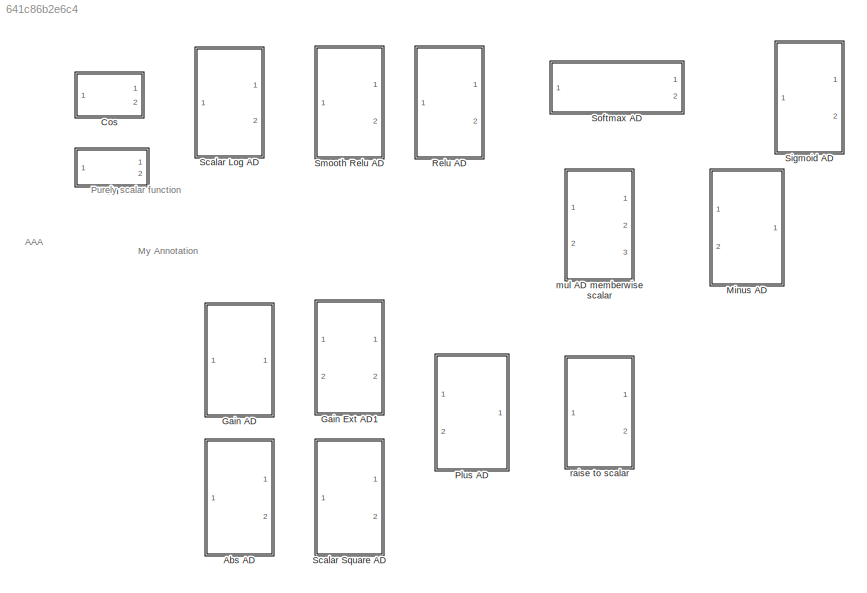
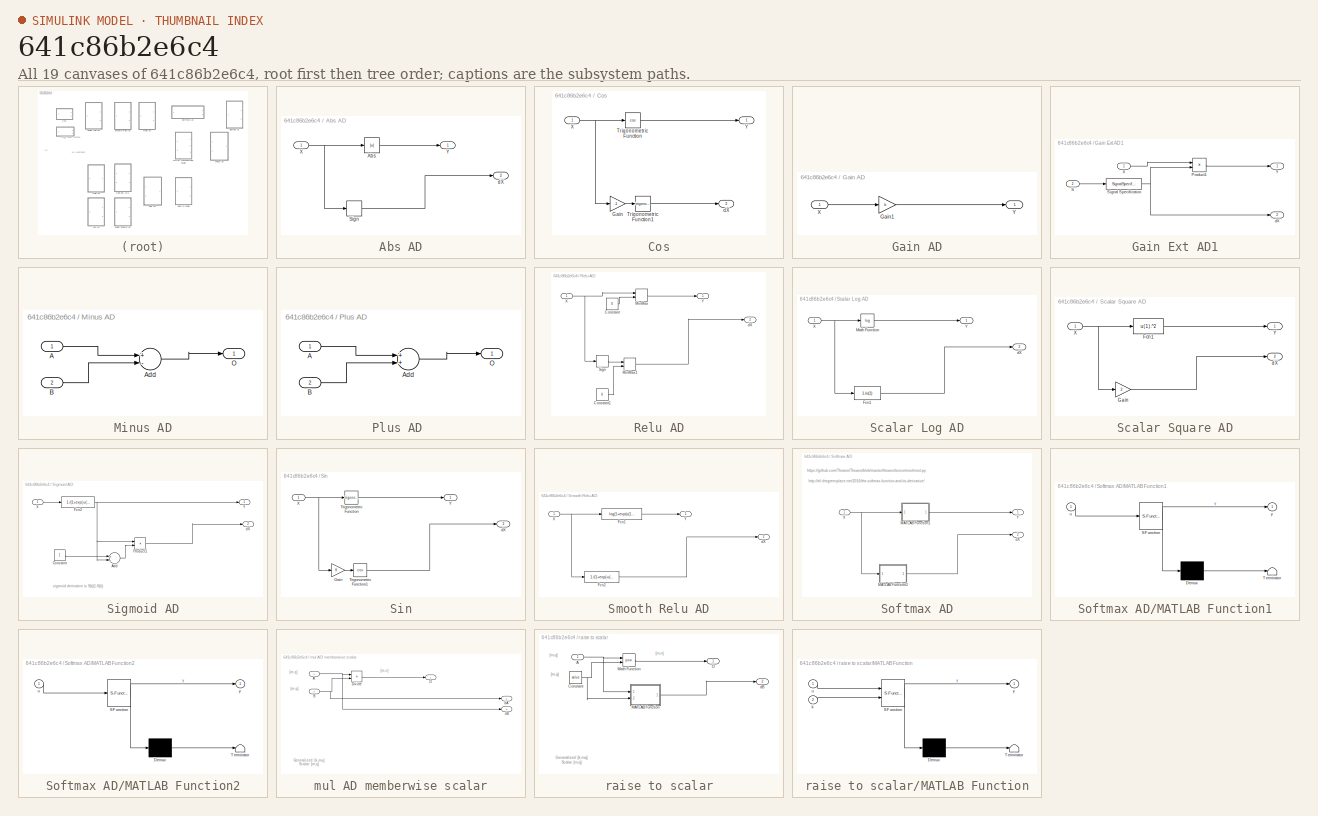
[diagram: thumbnail index - all 19 canvases of the model, root first then tree order]
MODEL slx_641c86b2e6c4
KIND library
CONFIG AbsTol = auto
CONFIG EnableMultiTasking = off
CONFIG FixedStep = auto
CONFIG MaxStep = auto
CONFIG MinStep = auto
CONFIG RelTol = 1e-3
CONFIG SampleTimeConstraint = Unconstrained
CONFIG Solver = VariableStepAuto
CONFIG SolverName = VariableStepAuto
CONFIG StartTime = 0.0
CONFIG StopTime = 10.0
BLOCK [SubSystem] Abs AD
  Ports = [1, 2]
  RequestExecContextInheritance = off
  Variant = off
BLOCK [Abs] Abs AD/Abs
  SaturateOnIntegerOverflow = off
BLOCK [Signum] Abs AD/Sign
BLOCK [Inport] Abs AD/X
  IconDisplay = Port number
BLOCK [Outport] Abs AD/Y
  IconDisplay = Port number
BLOCK [Outport] Abs AD/dX
  IconDisplay = Port number
  Port = 2
BLOCK [SubSystem] Cos
  Ports = [1, 2]
  RequestExecContextInheritance = off
  Variant = off
BLOCK [Gain] Cos/Gain
  Gain = -1
  OutDataTypeStr = Inherit: Inherit via internal rule
  ParamDataTypeStr = Inherit: Inherit via internal rule
  SaturateOnIntegerOverflow = off
BLOCK [Trigonometry] Cos/Trigonometric Function
  Operator = cos
  Ports = [1, 1]
BLOCK [Trigonometry] Cos/Trigonometric Function1
  Ports = [1, 1]
BLOCK [Inport] Cos/X
  IconDisplay = Port number
BLOCK [Outport] Cos/Y
  IconDisplay = Port number
BLOCK [Outport] Cos/dX
  IconDisplay = Port number
  Port = 2
BLOCK [SubSystem] Gain AD
  Ports = [1, 1]
  RequestExecContextInheritance = off
  Variant = off
BLOCK [Gain] Gain AD/Gain1
  Gain = k
  OutDataTypeStr = Inherit: Inherit via internal rule
  ParamDataTypeStr = Inherit: Inherit via internal rule
  SaturateOnIntegerOverflow = off
BLOCK [Inport] Gain AD/X
  IconDisplay = Port number
BLOCK [Outport] Gain AD/Y
  IconDisplay = Port number
BLOCK [SubSystem] Gain Ext AD1
  Ports = [2, 2]
  RequestExecContextInheritance = off
  Variant = off
BLOCK [Product] Gain Ext AD1/Product1
  InputSameDT = off
  OutDataTypeStr = Inherit: Inherit via internal rule
  Ports = [2, 1]
  RndMeth = Floor
  SaturateOnIntegerOverflow = off
BLOCK [Inport] Gain Ext AD1/S
  IconDisplay = Port number
  Port = 2
BLOCK [SignalSpecification] Gain Ext AD1/Signal Specification
  Dimensions = 1
  VarSizeSig = No
BLOCK [Inport] Gain Ext AD1/X
  IconDisplay = Port number
BLOCK [Outport] Gain Ext AD1/Y
  IconDisplay = Port number
BLOCK [Outport] Gain Ext AD1/dX
  IconDisplay = Port number
  Port = 2
BLOCK [SubSystem] Minus AD
  Ports = [2, 1]
  RequestExecContextInheritance = off
  Variant = off
BLOCK [Inport] Minus AD/A
  IconDisplay = Port number
BLOCK [Sum] Minus AD/Add
  InputSameDT = off
  Inputs = +-
  OutDataTypeStr = Inherit: Inherit via internal rule
  Ports = [2, 1]
  SaturateOnIntegerOverflow = off
BLOCK [Inport] Minus AD/B
  IconDisplay = Port number
  Port = 2
BLOCK [Outport] Minus AD/O
  IconDisplay = Port number
BLOCK [SubSystem] Plus AD 
  Ports = [2, 1]
  RequestExecContextInheritance = off
  Variant = off
BLOCK [Inport] Plus AD /A
  IconDisplay = Port number
BLOCK [Sum] Plus AD /Add
  InputSameDT = off
  OutDataTypeStr = Inherit: Inherit via internal rule
  Ports = [2, 1]
  SaturateOnIntegerOverflow = off
BLOCK [Inport] Plus AD /B
  IconDisplay = Port number
  Port = 2
BLOCK [Outport] Plus AD /O
  IconDisplay = Port number
BLOCK [SubSystem] Relu AD
  Ports = [1, 2]
  RequestExecContextInheritance = off
  Variant = off
BLOCK [Constant] Relu AD/Constant
  Value = 0
BLOCK [Constant] Relu AD/Constant1
  Value = 0
BLOCK [MinMax] Relu AD/MinMax
  Function = max
  InputSameDT = off
  Inputs = 2
  Ports = [2, 1]
  SaturateOnIntegerOverflow = off
BLOCK [MinMax] Relu AD/MinMax1
  Function = max
  InputSameDT = off
  Inputs = 2
  Ports = [2, 1]
  SaturateOnIntegerOverflow = off
BLOCK [Signum] Relu AD/Sign
BLOCK [Inport] Relu AD/X
  IconDisplay = Port number
BLOCK [Outport] Relu AD/Y
  IconDisplay = Port number
BLOCK [Outport] Relu AD/dX
  IconDisplay = Port number
  Port = 2
BLOCK [SubSystem] Scalar Log AD
  Ports = [1, 2]
  RequestExecContextInheritance = off
  Variant = off
BLOCK [Fcn] Scalar Log AD/Fcn1
  Expr = 1./u(1)
BLOCK [Math] Scalar Log AD/Math Function
  Operator = log
  Ports = [1, 1]
BLOCK [Inport] Scalar Log AD/X
  IconDisplay = Port number
BLOCK [Outport] Scalar Log AD/Y
  IconDisplay = Port number
BLOCK [Outport] Scalar Log AD/dX
  IconDisplay = Port number
  Port = 2
BLOCK [SubSystem] Scalar Square AD
  Ports = [1, 2]
  RequestExecContextInheritance = off
  Variant = off
BLOCK [Fcn] Scalar Square AD/Fcn1
  Expr = u(1).^2
BLOCK [Gain] Scalar Square AD/Gain
  Gain = 2
  OutDataTypeStr = Inherit: Inherit via internal rule
  ParamDataTypeStr = Inherit: Inherit via internal rule
  SaturateOnIntegerOverflow = off
BLOCK [Inport] Scalar Square AD/X
  IconDisplay = Port number
BLOCK [Outport] Scalar Square AD/Y
  IconDisplay = Port number
BLOCK [Outport] Scalar Square AD/dX
  IconDisplay = Port number
  Port = 2
BLOCK [SubSystem] Sigmoid AD
  Ports = [1, 2]
  RequestExecContextInheritance = off
  Variant = off
BLOCK [Sum] Sigmoid AD/Add
  InputSameDT = off
  Inputs = +-
  OutDataTypeStr = Inherit: Inherit via internal rule
  Ports = [2, 1]
  SaturateOnIntegerOverflow = off
BLOCK [Constant] Sigmoid AD/Constant
BLOCK [Fcn] Sigmoid AD/Fcn2
  Expr = 1./(1+exp(-u(1))
BLOCK [Product] Sigmoid AD/Product1
  InputSameDT = off
  OutDataTypeStr = Inherit: Inherit via internal rule
  Ports = [2, 1]
  RndMeth = Floor
  SaturateOnIntegerOverflow = off
BLOCK [Inport] Sigmoid AD/X
  IconDisplay = Port number
BLOCK [Outport] Sigmoid AD/Y
  IconDisplay = Port number
BLOCK [Outport] Sigmoid AD/dX
  IconDisplay = Port number
  Port = 2
BLOCK [SubSystem] Sin
  Ports = [1, 2]
  RequestExecContextInheritance = off
  Variant = off
BLOCK [Gain] Sin/Gain
  OutDataTypeStr = Inherit: Inherit via internal rule
  ParamDataTypeStr = Inherit: Inherit via internal rule
  SaturateOnIntegerOverflow = off
BLOCK [Trigonometry] Sin/Trigonometric Function
  Ports = [1, 1]
BLOCK [Trigonometry] Sin/Trigonometric Function1
  Operator = cos
  Ports = [1, 1]
BLOCK [Inport] Sin/X
  IconDisplay = Port number
BLOCK [Outport] Sin/Y
  IconDisplay = Port number
BLOCK [Outport] Sin/dX
  IconDisplay = Port number
  Port = 2
BLOCK [SubSystem] Smooth Relu AD
  Ports = [1, 2]
  RequestExecContextInheritance = off
  Variant = off
BLOCK [Fcn] Smooth Relu AD/Fcn1
  Expr = log(1+exp(u(1))
BLOCK [Fcn] Smooth Relu AD/Fcn2
  Expr = 1./(1+exp(-u(1))
BLOCK [Inport] Smooth Relu AD/X
  IconDisplay = Port number
BLOCK [Outport] Smooth Relu AD/Y
  IconDisplay = Port number
BLOCK [Outport] Smooth Relu AD/dX
  IconDisplay = Port number
  Port = 2
BLOCK [SubSystem] Softmax AD
  Ports = [1, 2]
  RequestExecContextInheritance = off
  ShowPortLabels = none
  Variant = off
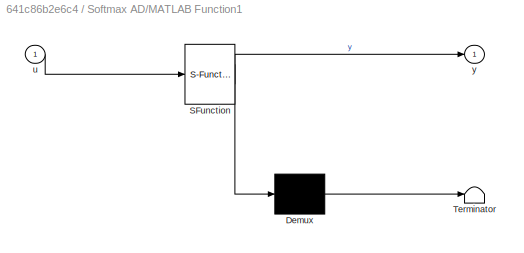
BLOCK [SubSystem] Softmax AD/MATLAB Function1
  ErrorFcn = Stateflow.Translate.translate
  PermitHierarchicalResolution = ExplicitOnly
  Ports = [1, 1]
  RequestExecContextInheritance = off
  SFBlockType = MATLAB Function
  TreatAsAtomicUnit = on
  Variant = off
BLOCK [Demux] Softmax AD/MATLAB Function1/ Demux 
  Outputs = 1
  Ports = [1, 1]
BLOCK [S-Function] Softmax AD/MATLAB Function1/ SFunction 
  EnableBusSupport = off
  FunctionName = sf_sfun
  PortCounts = [1 2]
  Ports = [1, 2]
  SFcnIsStateOwnerBlock = off
  SFunctionDeploymentMode = off
  Tag = Stateflow S-Function ad_mem_base 7
BLOCK [Terminator] Softmax AD/MATLAB Function1/ Terminator 
BLOCK [Inport] Softmax AD/MATLAB Function1/u
  IconDisplay = Port number
BLOCK [Outport] Softmax AD/MATLAB Function1/y
  IconDisplay = Port number
BLOCK [SubSystem] Softmax AD/MATLAB Function2
  ErrorFcn = Stateflow.Translate.translate
  PermitHierarchicalResolution = ExplicitOnly
  Ports = [1, 1]
  RequestExecContextInheritance = off
  SFBlockType = MATLAB Function
  TreatAsAtomicUnit = on
  Variant = off
BLOCK [Demux] Softmax AD/MATLAB Function2/ Demux 
  Outputs = 1
  Ports = [1, 1]
BLOCK [S-Function] Softmax AD/MATLAB Function2/ SFunction 
  EnableBusSupport = off
  FunctionName = sf_sfun
  PortCounts = [1 2]
  Ports = [1, 2]
  SFcnIsStateOwnerBlock = off
  SFunctionDeploymentMode = off
  Tag = Stateflow S-Function ad_mem_base 8
BLOCK [Terminator] Softmax AD/MATLAB Function2/ Terminator 
BLOCK [Inport] Softmax AD/MATLAB Function2/u
  IconDisplay = Port number
BLOCK [Outport] Softmax AD/MATLAB Function2/y
  IconDisplay = Port number
BLOCK [Inport] Softmax AD/X
  IconDisplay = Port number
BLOCK [Outport] Softmax AD/Y
  IconDisplay = Port number
BLOCK [Outport] Softmax AD/dX
  IconDisplay = Port number
  Port = 2
BLOCK [SubSystem] mul AD memberwise scalar
  Ports = [2, 3]
  RequestExecContextInheritance = off
  Variant = off
BLOCK [Inport] mul AD memberwise scalar/A
  IconDisplay = Port number
BLOCK [Inport] mul AD memberwise scalar/B
  IconDisplay = Port number
  Port = 2
BLOCK [Product] mul AD memberwise scalar/Divide
  InputSameDT = off
  Inputs = **
  OutDataTypeStr = Inherit: Inherit via internal rule
  Ports = [2, 1]
  RndMeth = Floor
  SaturateOnIntegerOverflow = off
BLOCK [Outport] mul AD memberwise scalar/O
  IconDisplay = Port number
BLOCK [Outport] mul AD memberwise scalar/dA
  IconDisplay = Port number
  Port = 2
BLOCK [Outport] mul AD memberwise scalar/dB
  IconDisplay = Port number
  Port = 3
BLOCK [SubSystem] raise to scalar
  Ports = [1, 2]
  RequestExecContextInheritance = off
  Variant = off
BLOCK [Inport] raise to scalar/A
  IconDisplay = Port number
BLOCK [Constant] raise to scalar/Constant
  Value = value
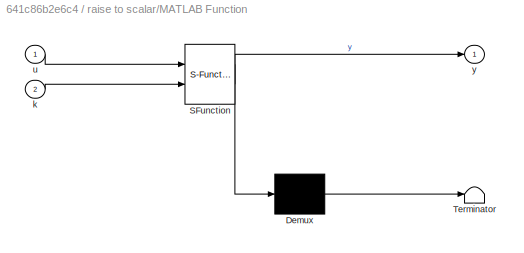
BLOCK [SubSystem] raise to scalar/MATLAB Function
  ErrorFcn = Stateflow.Translate.translate
  PermitHierarchicalResolution = ExplicitOnly
  Ports = [2, 1]
  RequestExecContextInheritance = off
  SFBlockType = MATLAB Function
  TreatAsAtomicUnit = on
  Variant = off
BLOCK [Demux] raise to scalar/MATLAB Function/ Demux 
  Outputs = 1
  Ports = [1, 1]
BLOCK [S-Function] raise to scalar/MATLAB Function/ SFunction 
  EnableBusSupport = off
  FunctionName = sf_sfun
  PortCounts = [2 2]
  Ports = [2, 2]
  SFcnIsStateOwnerBlock = off
  SFunctionDeploymentMode = off
  Tag = Stateflow S-Function ad_mem_base 2
BLOCK [Terminator] raise to scalar/MATLAB Function/ Terminator 
BLOCK [Inport] raise to scalar/MATLAB Function/k
  IconDisplay = Port number
  Port = 2
BLOCK [Inport] raise to scalar/MATLAB Function/u
  IconDisplay = Port number
BLOCK [Outport] raise to scalar/MATLAB Function/y
  IconDisplay = Port number
BLOCK [Math] raise to scalar/Math Function
  Operator = pow
  Ports = [2, 1]
BLOCK [Outport] raise to scalar/O
  IconDisplay = Port number
BLOCK [Outport] raise to scalar/dB
  IconDisplay = Port number
  Port = 2
ANNOTATION (root): AAA
ANNOTATION (root): My Annotation
ANNOTATION (root): Purely scalar function
ANNOTATION Sigmoid AD: sigmoid derivative is S(t)(1-S(t))
ANNOTATION Softmax AD: http://eli.thegreenplace.net/2016/the-softmax-function-and-its-derivative/
ANNOTATION Softmax AD: https://github.com/Theano/Theano/blob/master/theano/tensor/nnet/nnet.py
ANNOTATION mul AD memberwise scalar: Generalized: [k,mq] Scalar: [m,q]
ANNOTATION mul AD memberwise scalar: [m,n]
ANNOTATION mul AD memberwise scalar: [m,q]
ANNOTATION raise to scalar: Generalized: [k,mq] Scalar: [m,q]
ANNOTATION raise to scalar: [m,n]
ANNOTATION raise to scalar: [m,q]
LINE Abs AD/Abs:1 -> Abs AD/Y:1
LINE Abs AD/Sign:1 -> Abs AD/dX:1
NET Abs AD/X:1 -> Abs AD/Abs:1, Abs AD/Sign:1
LINE Cos/Gain:1 -> Cos/Trigonometric Function1:1
LINE Cos/Trigonometric Function1:1 -> Cos/dX:1
LINE Cos/Trigonometric Function:1 -> Cos/Y:1
NET Cos/X:1 -> Cos/Gain:1, Cos/Trigonometric Function:1
LINE Gain AD/Gain1:1 -> Gain AD/Y:1
LINE Gain AD/X:1 -> Gain AD/Gain1:1
LINE Gain Ext AD1/Product1:1 -> Gain Ext AD1/Y:1
LINE Gain Ext AD1/S:1 -> Gain Ext AD1/Signal Specification:1
NET Gain Ext AD1/Signal Specification:1 -> Gain Ext AD1/Product1:2, Gain Ext AD1/dX:1
LINE Gain Ext AD1/X:1 -> Gain Ext AD1/Product1:1
LINE Minus AD/A:1 -> Minus AD/Add:1
LINE Minus AD/Add:1 -> Minus AD/O:1
LINE Minus AD/B:1 -> Minus AD/Add:2
LINE Plus AD /A:1 -> Plus AD /Add:1
LINE Plus AD /Add:1 -> Plus AD /O:1
LINE Plus AD /B:1 -> Plus AD /Add:2
LINE Relu AD/Constant1:1 -> Relu AD/MinMax1:2
LINE Relu AD/Constant:1 -> Relu AD/MinMax:2
LINE Relu AD/MinMax1:1 -> Relu AD/dX:1
LINE Relu AD/MinMax:1 -> Relu AD/Y:1
LINE Relu AD/Sign:1 -> Relu AD/MinMax1:1
NET Relu AD/X:1 -> Relu AD/MinMax:1, Relu AD/Sign:1
LINE Scalar Log AD/Fcn1:1 -> Scalar Log AD/dX:1
LINE Scalar Log AD/Math Function:1 -> Scalar Log AD/Y:1
NET Scalar Log AD/X:1 -> Scalar Log AD/Fcn1:1, Scalar Log AD/Math Function:1
LINE Scalar Square AD/Fcn1:1 -> Scalar Square AD/Y:1
LINE Scalar Square AD/Gain:1 -> Scalar Square AD/dX:1
NET Scalar Square AD/X:1 -> Scalar Square AD/Fcn1:1, Scalar Square AD/Gain:1
LINE Sigmoid AD/Add:1 -> Sigmoid AD/Product1:2
LINE Sigmoid AD/Constant:1 -> Sigmoid AD/Add:1
NET Sigmoid AD/Fcn2:1 -> Sigmoid AD/Add:2, Sigmoid AD/Product1:1, Sigmoid AD/Y:1
LINE Sigmoid AD/Product1:1 -> Sigmoid AD/dX:1
LINE Sigmoid AD/X:1 -> Sigmoid AD/Fcn2:1
LINE Sin/Gain:1 -> Sin/Trigonometric Function1:1
LINE Sin/Trigonometric Function1:1 -> Sin/dX:1
LINE Sin/Trigonometric Function:1 -> Sin/Y:1
NET Sin/X:1 -> Sin/Gain:1, Sin/Trigonometric Function:1
LINE Smooth Relu AD/Fcn1:1 -> Smooth Relu AD/Y:1
LINE Smooth Relu AD/Fcn2:1 -> Smooth Relu AD/dX:1
NET Smooth Relu AD/X:1 -> Smooth Relu AD/Fcn1:1, Smooth Relu AD/Fcn2:1
LINE Softmax AD/MATLAB Function1:1 -> Softmax AD/Y:1
LINE Softmax AD/MATLAB Function2:1 -> Softmax AD/dX:1
NET Softmax AD/X:1 -> Softmax AD/MATLAB Function1:1, Softmax AD/MATLAB Function2:1
NET mul AD memberwise scalar/A:1 -> mul AD memberwise scalar/Divide:1, mul AD memberwise scalar/dB:1
NET mul AD memberwise scalar/B:1 -> mul AD memberwise scalar/Divide:2, mul AD memberwise scalar/dA:1
LINE mul AD memberwise scalar/Divide:1 -> mul AD memberwise scalar/O:1
NET raise to scalar/A:1 -> raise to scalar/MATLAB Function:1, raise to scalar/Math Function:1
NET raise to scalar/Constant:1 -> raise to scalar/MATLAB Function:2, raise to scalar/Math Function:2
LINE raise to scalar/MATLAB Function:1 -> raise to scalar/dB:1
LINE raise to scalar/Math Function:1 -> raise to scalar/O:1
note: NET lines group one-source signal fan-out (src -> all destinations, sorted); 1:1 wires keep LINE
CHART raise to scalar/MATLAB Function states=1 transitions=1
  STATE_LABEL 'eML_blk_kernel()'
  STATE_LABEL 'SCRIPT:\nfunction y = fcn(u,k)\n\ny = k*u.\\^(k-1);'
CHART Softmax AD/MATLAB Function1 states=1 transitions=1
  STATE_LABEL 'eML_blk_kernel()'
  STATE_LABEL 'SCRIPT:\nfunction y = fcn(u)\n%#codegen\nexps = exp(u-max(u(:)));\ny = exps/sum(exps(:));\n\n'
CHART Softmax AD/MATLAB Function2 states=1 transitions=1
  STATE_LABEL 'eML_blk_kernel()'
  STATE_LABEL 'SCRIPT:\nfunction y = fcn(u)\n\ny = 1./(1+exp(-u));'
